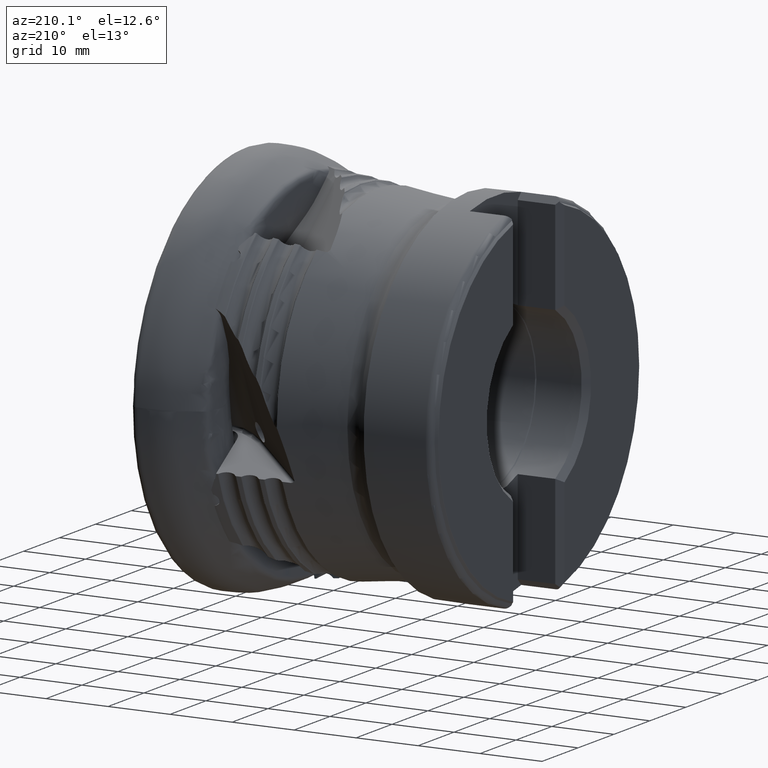
[diagram: clean part render]
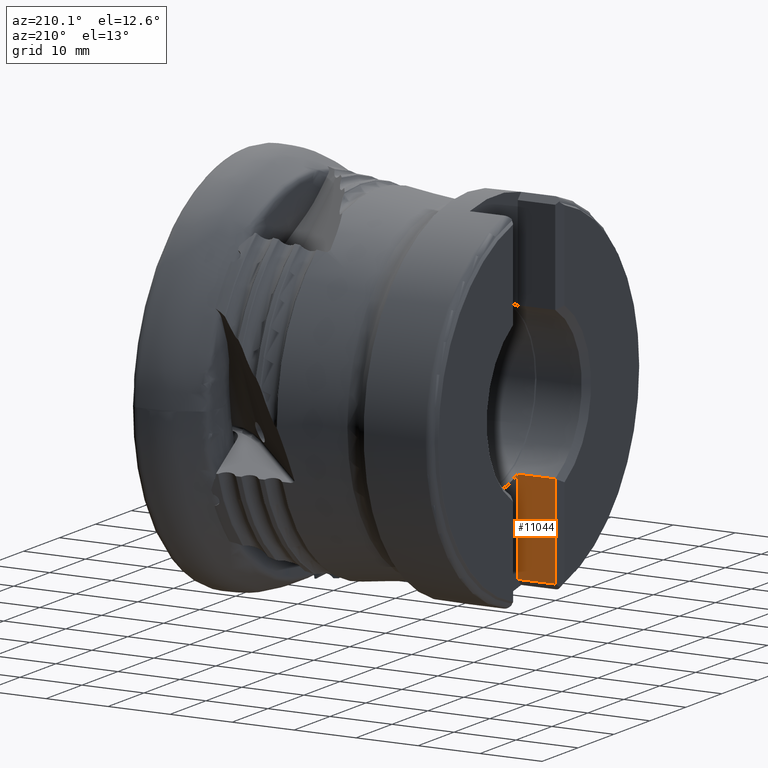
[diagram: same view with one face highlighted and labeled with its STEP entity id]
A machine part, auxiliary view. The second image highlights one B-rep face of the part: STEP entity #11044.
In plain terms, the highlighted planar face has unit normal (0, -1, 0).
Its self-contained STEP definition (entity closure, byte-faithful):
#425 = PLANE ( 'NONE',  #11919 ) ;
#643 = CARTESIAN_POINT ( 'NONE',  ( -41.90525917703946100, -6.200000000000003700, -12.07644918839970500 ) ) ;
#938 = FACE_OUTER_BOUND ( 'NONE', #5353, .T. ) ;
#1151 = ORIENTED_EDGE ( 'NONE', *, *, #12884, .F. ) ;
#1216 = EDGE_CURVE ( 'NONE', #2530, #5801, #2704, .T. ) ;
#1385 = EDGE_CURVE ( 'NONE', #2530, #9082, #7370, .T. ) ;
#1824 = DIRECTION ( 'NONE',  ( -0.0000000000000000000, -0.0000000000000000000, 1.000000000000000000 ) ) ;
#2039 = ORIENTED_EDGE ( 'NONE', *, *, #1385, .T. ) ;
#2526 = DIRECTION ( 'NONE',  ( 2.867311530540177200E-016, -1.000000000000000000, 0.0000000000000000000 ) ) ;
#2530 = VERTEX_POINT ( 'NONE', #11872 ) ;
#2704 = LINE ( 'NONE', #12095, #10950 ) ;
#3411 = CARTESIAN_POINT ( 'NONE',  ( -47.95525917703946600, -6.200000000000009100, -27.11621402010960200 ) ) ;
#4182 = ORIENTED_EDGE ( 'NONE', *, *, #5859, .T. ) ;
#4457 = CARTESIAN_POINT ( 'NONE',  ( 0.3947408229605496900, -6.199999999999992200, -12.07644918839970500 ) ) ;
#4585 = VECTOR ( 'NONE', #1824, 1000.000000000000000 ) ;
#4751 = VERTEX_POINT ( 'NONE', #4961 ) ;
#4961 = CARTESIAN_POINT ( 'NONE',  ( -47.95525917703945900, -6.200000000000005500, -12.07644918839970000 ) ) ;
#5353 = EDGE_LOOP ( 'NONE', ( #12257, #2039, #4182, #1151 ) ) ;
#5489 = VECTOR ( 'NONE', #9265, 1000.000000000000000 ) ;
#5801 = VERTEX_POINT ( 'NONE', #643 ) ;
#5836 = LINE ( 'NONE', #4457, #11297 ) ;
#5859 = EDGE_CURVE ( 'NONE', #9082, #4751, #6798, .T. ) ;
#5970 = CARTESIAN_POINT ( 'NONE',  ( -47.45525917703945100, -6.200000000000005500, -27.11621402010959200 ) ) ;
#6798 = LINE ( 'NONE', #12559, #4585 ) ;
#7370 = LINE ( 'NONE', #5970, #5489 ) ;
#9082 = VERTEX_POINT ( 'NONE', #3411 ) ;
#9265 = DIRECTION ( 'NONE',  ( -1.000000000000000000, -2.867311530540177200E-016, 7.308675904309953100E-017 ) ) ;
#10015 = DIRECTION ( 'NONE',  ( 1.000000000000000000, 2.867311530540177200E-016, 0.0000000000000000000 ) ) ;
#10950 = VECTOR ( 'NONE', #13174, 1000.000000000000000 ) ;
#10974 = DIRECTION ( 'NONE',  ( -1.000000000000000000, -8.918127540765139200E-019, 0.0000000000000000000 ) ) ;
#11044 = ADVANCED_FACE ( 'NONE', ( #938 ), #425, .F. ) ;
#11297 = VECTOR ( 'NONE', #10974, 1000.000000000000000 ) ;
#11872 = CARTESIAN_POINT ( 'NONE',  ( -41.90525917703946100, -6.200000000000003700, -27.11621402010959200 ) ) ;
#11919 = AXIS2_PLACEMENT_3D ( 'NONE', #13167, #2526, #10015 ) ;
#12095 = CARTESIAN_POINT ( 'NONE',  ( -41.90525917703946100, -6.200000000000003700, -35.00000000000000000 ) ) ;
#12257 = ORIENTED_EDGE ( 'NONE', *, *, #1216, .F. ) ;
#12559 = CARTESIAN_POINT ( 'NONE',  ( -47.95525917703945900, -6.200000000000005500, -35.00000000000000000 ) ) ;
#12884 = EDGE_CURVE ( 'NONE', #5801, #4751, #5836, .T. ) ;
#13167 = CARTESIAN_POINT ( 'NONE',  ( -47.95525917703945900, -6.200000000000005500, -35.00000000000000000 ) ) ;
#13174 = DIRECTION ( 'NONE',  ( -0.0000000000000000000, -0.0000000000000000000, 1.000000000000000000 ) ) ;